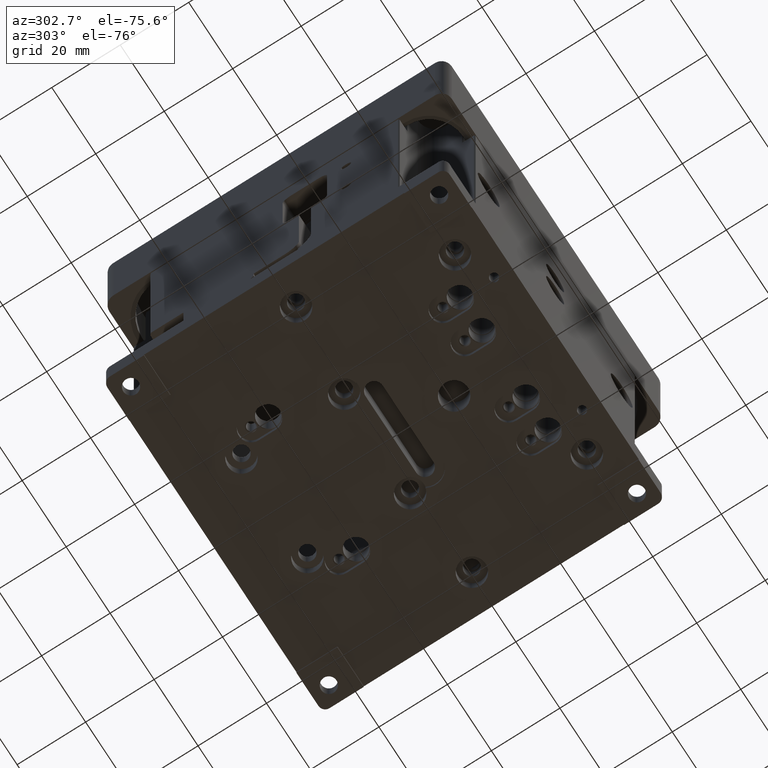
[diagram: clean part render]
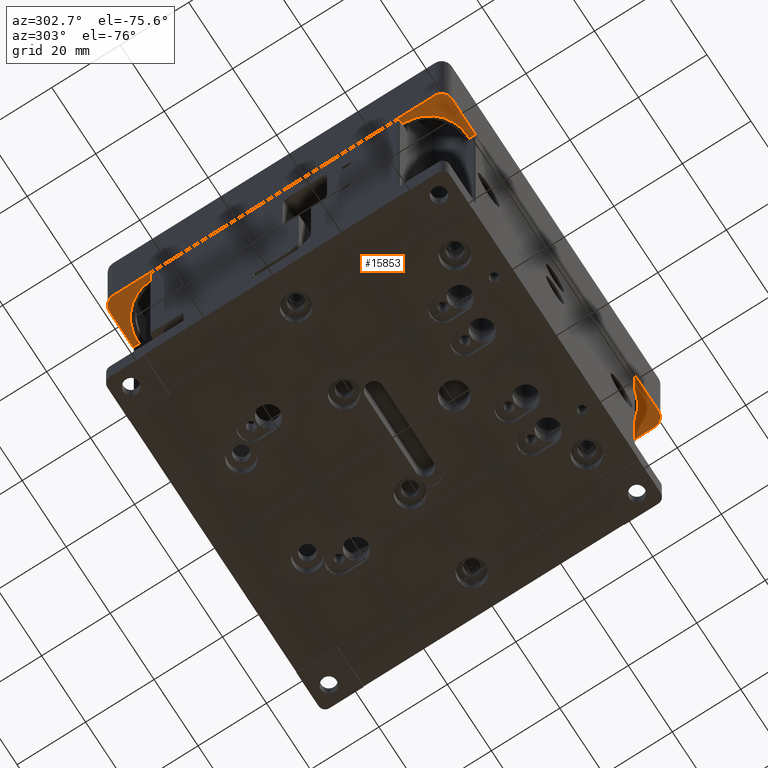
[diagram: same view with one face highlighted and labeled with its STEP entity id]
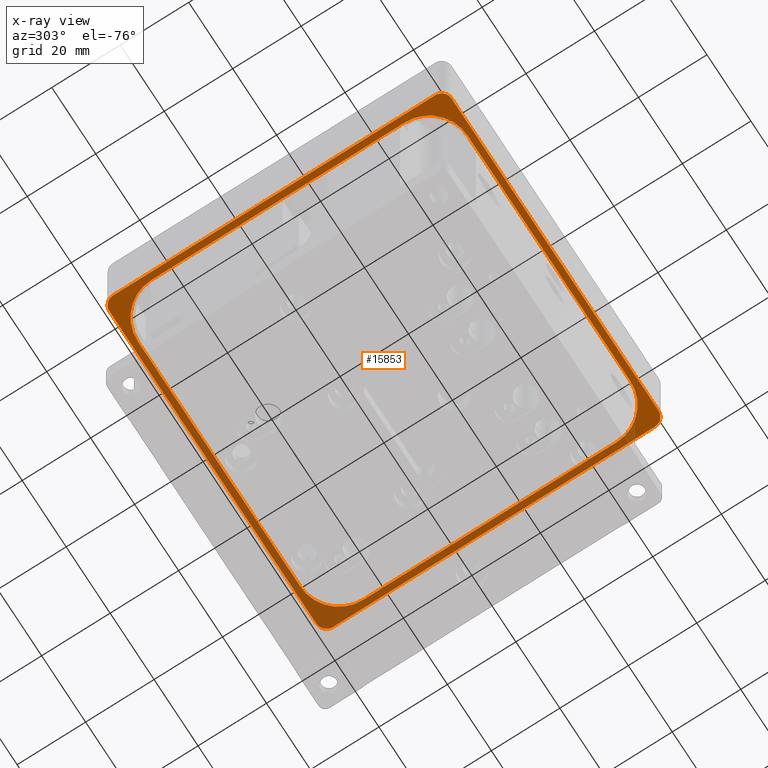
[diagram: x-ray of the same camera — body ghosted, the highlighted face saturated]
A machine part, auxiliary view. The second image highlights one B-rep face of the part: STEP entity #15853.
The next image is the same camera in x-ray: the body ghosted, the highlighted face saturated — about 43% of this face is hidden behind the body in this view.
In plain terms, the highlighted planar face has unit normal (0, 0, -1).
Its self-contained STEP definition (entity closure, byte-faithful):
#95 = CARTESIAN_POINT ( 'NONE',  ( -37.00000000000000711, 48.19999999999999574, 68.00000000000000000 ) ) ;
#1763 = ORIENTED_EDGE ( 'NONE', *, *, #9251, .T. ) ;
#1807 = VERTEX_POINT ( 'NONE', #34474 ) ;
#1870 = VERTEX_POINT ( 'NONE', #22133 ) ;
#2179 = EDGE_CURVE ( 'NONE', #12905, #38313, #27971, .T. ) ;
#2380 = CARTESIAN_POINT ( 'NONE',  ( 36.99999999999997868, 48.20000000000000284, 68.00000000000000000 ) ) ;
#2649 = ORIENTED_EDGE ( 'NONE', *, *, #2179, .T. ) ;
#3436 = EDGE_LOOP ( 'NONE', ( #23897, #28896, #11574, #13404, #1763, #2649, #4637, #4298 ) ) ;
#3586 = CARTESIAN_POINT ( 'NONE',  ( 48.19999999999998863, -46.99999999999999289, 68.00000000000000000 ) ) ;
#3837 = CARTESIAN_POINT ( 'NONE',  ( -50.00000000000001421, -47.00000000000000000, 68.00000000000000000 ) ) ;
#4111 = EDGE_CURVE ( 'NONE', #27485, #28916, #9417, .T. ) ;
#4298 = ORIENTED_EDGE ( 'NONE', *, *, #25643, .T. ) ;
#4637 = ORIENTED_EDGE ( 'NONE', *, *, #7466, .T. ) ;
#4755 = EDGE_LOOP ( 'NONE', ( #17497, #11830, #14737, #35821, #8508, #41963, #32612, #16092 ) ) ;
#5177 = CARTESIAN_POINT ( 'NONE',  ( 46.99999999999998579, -48.19999999999999574, 68.00000000000000000 ) ) ;
#5280 = CARTESIAN_POINT ( 'NONE',  ( 46.99999999999998579, 48.20000000000000995, 68.00000000000000000 ) ) ;
#5614 = CARTESIAN_POINT ( 'NONE',  ( 0.000000000000000000, 50.00000000000000000, 68.00000000000000000 ) ) ;
#6296 = FACE_BOUND ( 'NONE', #3436, .T. ) ;
#7103 = DIRECTION ( 'NONE',  ( -0.000000000000000000, -1.000000000000000000, -0.000000000000000000 ) ) ;
#7131 = CARTESIAN_POINT ( 'NONE',  ( -37.00000000000001421, 37.00000000000000000, 68.00000000000000000 ) ) ;
#7466 = EDGE_CURVE ( 'NONE', #38313, #32853, #22469, .T. ) ;
#7651 = VERTEX_POINT ( 'NONE', #12398 ) ;
#8019 = VERTEX_POINT ( 'NONE', #17467 ) ;
#8020 = CIRCLE ( 'NONE', #15474, 3.000000000000002665 ) ;
#8424 = CIRCLE ( 'NONE', #13125, 11.20000000000000107 ) ;
#8508 = ORIENTED_EDGE ( 'NONE', *, *, #25168, .T. ) ;
#8875 = CARTESIAN_POINT ( 'NONE',  ( 47.00000000000000000, -47.00000000000000000, 68.00000000000000000 ) ) ;
#9251 = EDGE_CURVE ( 'NONE', #8019, #12905, #38185, .T. ) ;
#9417 = LINE ( 'NONE', #34884, #33888 ) ;
#9602 = LINE ( 'NONE', #22518, #17128 ) ;
#10176 = CARTESIAN_POINT ( 'NONE',  ( -48.20000000000001705, -46.99999999999999289, 68.00000000000000000 ) ) ;
#10380 = AXIS2_PLACEMENT_3D ( 'NONE', #26351, #27210, #13418 ) ;
#10715 = VERTEX_POINT ( 'NONE', #34745 ) ;
#11574 = ORIENTED_EDGE ( 'NONE', *, *, #31391, .T. ) ;
#11726 = VERTEX_POINT ( 'NONE', #12274 ) ;
#11830 = ORIENTED_EDGE ( 'NONE', *, *, #21210, .T. ) ;
#12006 = CARTESIAN_POINT ( 'NONE',  ( -47.00000000000000000, 50.00000000000000000, 68.00000000000000000 ) ) ;
#12169 = VERTEX_POINT ( 'NONE', #12006 ) ;
#12274 = CARTESIAN_POINT ( 'NONE',  ( 49.99999999999998579, -47.00000000000000000, 68.00000000000000000 ) ) ;
#12398 = CARTESIAN_POINT ( 'NONE',  ( -48.20000000000001705, -36.99999999999999289, 68.00000000000000000 ) ) ;
#12785 = DIRECTION ( 'NONE',  ( 0.000000000000000000, 0.000000000000000000, -1.000000000000000000 ) ) ;
#12905 = VERTEX_POINT ( 'NONE', #2380 ) ;
#13125 = AXIS2_PLACEMENT_3D ( 'NONE', #15041, #37094, #31159 ) ;
#13404 = ORIENTED_EDGE ( 'NONE', *, *, #19962, .T. ) ;
#13418 = DIRECTION ( 'NONE',  ( -1.000000000000000000, 0.000000000000000000, 0.000000000000000000 ) ) ;
#14737 = ORIENTED_EDGE ( 'NONE', *, *, #4111, .T. ) ;
#15041 = CARTESIAN_POINT ( 'NONE',  ( -37.00000000000000711, -36.99999999999999289, 68.00000000000000000 ) ) ;
#15298 = DIRECTION ( 'NONE',  ( 0.000000000000000000, 0.000000000000000000, -1.000000000000000000 ) ) ;
#15474 = AXIS2_PLACEMENT_3D ( 'NONE', #24411, #15298, #31214 ) ;
#15853 = ADVANCED_FACE ( 'NONE', ( #24743, #6296 ), #16039, .T. ) ;
#16039 = PLANE ( 'NONE',  #29629 ) ;
#16063 = DIRECTION ( 'NONE',  ( -1.000000000000000000, 0.000000000000000000, 0.000000000000000000 ) ) ;
#16092 = ORIENTED_EDGE ( 'NONE', *, *, #35764, .T. ) ;
#16820 = VECTOR ( 'NONE', #7103, 1000.000000000000000 ) ;
#16915 = CIRCLE ( 'NONE', #37234, 3.000000000000002665 ) ;
#17128 = VECTOR ( 'NONE', #35481, 1000.000000000000000 ) ;
#17467 = CARTESIAN_POINT ( 'NONE',  ( 48.19999999999998863, 37.00000000000002132, 68.00000000000000000 ) ) ;
#17497 = ORIENTED_EDGE ( 'NONE', *, *, #36268, .T. ) ;
#17702 = DIRECTION ( 'NONE',  ( 1.000000000000000000, 0.000000000000000000, 0.000000000000000000 ) ) ;
#19033 = CARTESIAN_POINT ( 'NONE',  ( 36.99999999999998579, -36.99999999999999289, 68.00000000000000000 ) ) ;
#19248 = VERTEX_POINT ( 'NONE', #34241 ) ;
#19962 = EDGE_CURVE ( 'NONE', #1870, #8019, #29446, .T. ) ;
#20467 = AXIS2_PLACEMENT_3D ( 'NONE', #28900, #12785, #25717 ) ;
#20889 = VECTOR ( 'NONE', #17702, 1000.000000000000000 ) ;
#21210 = EDGE_CURVE ( 'NONE', #11726, #27485, #27809, .T. ) ;
#22133 = CARTESIAN_POINT ( 'NONE',  ( 48.19999999999998863, -36.99999999999999289, 68.00000000000000000 ) ) ;
#22186 = DIRECTION ( 'NONE',  ( -0.000000000000000000, -0.000000000000000000, 1.000000000000000000 ) ) ;
#22310 = DIRECTION ( 'NONE',  ( 1.000000000000000000, -0.000000000000000000, 0.000000000000000000 ) ) ;
#22469 = CIRCLE ( 'NONE', #27939, 11.20000000000000107 ) ;
#22518 = CARTESIAN_POINT ( 'NONE',  ( -50.00000000000003553, 0.000000000000000000, 68.00000000000000000 ) ) ;
#22654 = DIRECTION ( 'NONE',  ( 0.000000000000000000, 0.000000000000000000, -1.000000000000000000 ) ) ;
#23103 = DIRECTION ( 'NONE',  ( -0.000000000000000000, -1.000000000000000000, 0.000000000000000000 ) ) ;
#23745 = LINE ( 'NONE', #10176, #41531 ) ;
#23897 = ORIENTED_EDGE ( 'NONE', *, *, #26784, .T. ) ;
#24411 = CARTESIAN_POINT ( 'NONE',  ( 47.00000000000000000, 47.00000000000000000, 68.00000000000000000 ) ) ;
#24743 = FACE_OUTER_BOUND ( 'NONE', #4755, .T. ) ;
#24932 = VECTOR ( 'NONE', #34534, 1000.000000000000000 ) ;
#25163 = EDGE_CURVE ( 'NONE', #38305, #12169, #40815, .T. ) ;
#25168 = EDGE_CURVE ( 'NONE', #26650, #38305, #9602, .T. ) ;
#25643 = EDGE_CURVE ( 'NONE', #32853, #7651, #23745, .T. ) ;
#25717 = DIRECTION ( 'NONE',  ( -1.000000000000000000, 0.000000000000000000, 0.000000000000000000 ) ) ;
#25766 = AXIS2_PLACEMENT_3D ( 'NONE', #19033, #22186, #16063 ) ;
#25826 = VERTEX_POINT ( 'NONE', #28609 ) ;
#25966 = LINE ( 'NONE', #38712, #16820 ) ;
#26318 = VECTOR ( 'NONE', #38582, 1000.000000000000000 ) ;
#26351 = CARTESIAN_POINT ( 'NONE',  ( 36.99999999999998579, 37.00000000000000711, 68.00000000000000000 ) ) ;
#26410 = DIRECTION ( 'NONE',  ( 0.000000000000000000, 0.000000000000000000, -1.000000000000000000 ) ) ;
#26650 = VERTEX_POINT ( 'NONE', #3837 ) ;
#26784 = EDGE_CURVE ( 'NONE', #7651, #1807, #8424, .T. ) ;
#27210 = DIRECTION ( 'NONE',  ( -0.000000000000000000, -0.000000000000000000, 1.000000000000000000 ) ) ;
#27485 = VERTEX_POINT ( 'NONE', #32446 ) ;
#27528 = VECTOR ( 'NONE', #22310, 1000.000000000000000 ) ;
#27809 = CIRCLE ( 'NONE', #41353, 3.000000000000002665 ) ;
#27939 = AXIS2_PLACEMENT_3D ( 'NONE', #7131, #39569, #30028 ) ;
#27971 = LINE ( 'NONE', #5280, #24932 ) ;
#28609 = CARTESIAN_POINT ( 'NONE',  ( 36.99999999999997868, -48.19999999999999574, 68.00000000000000000 ) ) ;
#28896 = ORIENTED_EDGE ( 'NONE', *, *, #36337, .T. ) ;
#28900 = CARTESIAN_POINT ( 'NONE',  ( -47.00000000000000000, 47.00000000000000000, 68.00000000000000000 ) ) ;
#28916 = VERTEX_POINT ( 'NONE', #33455 ) ;
#29180 = DIRECTION ( 'NONE',  ( -1.000000000000000000, 0.000000000000000000, -0.000000000000000000 ) ) ;
#29446 = LINE ( 'NONE', #3586, #26318 ) ;
#29629 = AXIS2_PLACEMENT_3D ( 'NONE', #39350, #26410, #29180 ) ;
#29866 = CIRCLE ( 'NONE', #25766, 11.20000000000000107 ) ;
#30028 = DIRECTION ( 'NONE',  ( -1.000000000000000000, -6.195440985631453345E-16, 0.000000000000000000 ) ) ;
#30935 = DIRECTION ( 'NONE',  ( 0.000000000000000000, 0.000000000000000000, -1.000000000000000000 ) ) ;
#31159 = DIRECTION ( 'NONE',  ( -1.000000000000000000, 0.000000000000000000, 0.000000000000000000 ) ) ;
#31214 = DIRECTION ( 'NONE',  ( -1.000000000000000000, 0.000000000000000000, 0.000000000000000000 ) ) ;
#31391 = EDGE_CURVE ( 'NONE', #25826, #1870, #29866, .T. ) ;
#32446 = CARTESIAN_POINT ( 'NONE',  ( 47.00000000000000000, -50.00000000000000000, 68.00000000000000000 ) ) ;
#32612 = ORIENTED_EDGE ( 'NONE', *, *, #41941, .T. ) ;
#32853 = VERTEX_POINT ( 'NONE', #40649 ) ;
#33455 = CARTESIAN_POINT ( 'NONE',  ( -47.00000000000000000, -50.00000000000000000, 68.00000000000000000 ) ) ;
#33888 = VECTOR ( 'NONE', #37657, 1000.000000000000000 ) ;
#34226 = LINE ( 'NONE', #5177, #20889 ) ;
#34241 = CARTESIAN_POINT ( 'NONE',  ( 49.99999999999998579, 47.00000000000000000, 68.00000000000000000 ) ) ;
#34323 = DIRECTION ( 'NONE',  ( -1.000000000000000000, 0.000000000000000000, 0.000000000000000000 ) ) ;
#34474 = CARTESIAN_POINT ( 'NONE',  ( -37.00000000000000711, -48.19999999999999574, 68.00000000000000000 ) ) ;
#34534 = DIRECTION ( 'NONE',  ( -1.000000000000000000, -0.000000000000000000, -0.000000000000000000 ) ) ;
#34745 = CARTESIAN_POINT ( 'NONE',  ( 47.00000000000000000, 50.00000000000000000, 68.00000000000000000 ) ) ;
#34884 = CARTESIAN_POINT ( 'NONE',  ( 0.000000000000000000, -50.00000000000000000, 68.00000000000000000 ) ) ;
#35408 = DIRECTION ( 'NONE',  ( -1.000000000000000000, 0.000000000000000000, 0.000000000000000000 ) ) ;
#35481 = DIRECTION ( 'NONE',  ( 0.000000000000000000, 1.000000000000000000, 0.000000000000000000 ) ) ;
#35764 = EDGE_CURVE ( 'NONE', #10715, #19248, #8020, .T. ) ;
#35821 = ORIENTED_EDGE ( 'NONE', *, *, #37598, .T. ) ;
#36268 = EDGE_CURVE ( 'NONE', #19248, #11726, #25966, .T. ) ;
#36337 = EDGE_CURVE ( 'NONE', #1807, #25826, #34226, .T. ) ;
#37094 = DIRECTION ( 'NONE',  ( -0.000000000000000000, -0.000000000000000000, 1.000000000000000000 ) ) ;
#37234 = AXIS2_PLACEMENT_3D ( 'NONE', #38379, #22654, #35408 ) ;
#37598 = EDGE_CURVE ( 'NONE', #28916, #26650, #16915, .T. ) ;
#37657 = DIRECTION ( 'NONE',  ( -1.000000000000000000, 0.000000000000000000, -0.000000000000000000 ) ) ;
#37835 = LINE ( 'NONE', #5614, #27528 ) ;
#38185 = CIRCLE ( 'NONE', #10380, 11.20000000000000107 ) ;
#38305 = VERTEX_POINT ( 'NONE', #38707 ) ;
#38313 = VERTEX_POINT ( 'NONE', #95 ) ;
#38379 = CARTESIAN_POINT ( 'NONE',  ( -47.00000000000000000, -47.00000000000000000, 68.00000000000000000 ) ) ;
#38582 = DIRECTION ( 'NONE',  ( -0.000000000000000000, 1.000000000000000000, 0.000000000000000000 ) ) ;
#38707 = CARTESIAN_POINT ( 'NONE',  ( -50.00000000000001421, 47.00000000000000000, 68.00000000000000000 ) ) ;
#38712 = CARTESIAN_POINT ( 'NONE',  ( 49.99999999999997868, 0.000000000000000000, 68.00000000000000000 ) ) ;
#39350 = CARTESIAN_POINT ( 'NONE',  ( 0.000000000000000000, 0.000000000000000000, 68.00000000000000000 ) ) ;
#39569 = DIRECTION ( 'NONE',  ( -0.000000000000000000, -0.000000000000000000, 1.000000000000000000 ) ) ;
#40649 = CARTESIAN_POINT ( 'NONE',  ( -48.20000000000001705, 37.00000000000000000, 68.00000000000000000 ) ) ;
#40815 = CIRCLE ( 'NONE', #20467, 3.000000000000002665 ) ;
#41353 = AXIS2_PLACEMENT_3D ( 'NONE', #8875, #30935, #34323 ) ;
#41531 = VECTOR ( 'NONE', #23103, 1000.000000000000000 ) ;
#41941 = EDGE_CURVE ( 'NONE', #12169, #10715, #37835, .T. ) ;
#41963 = ORIENTED_EDGE ( 'NONE', *, *, #25163, .T. ) ;